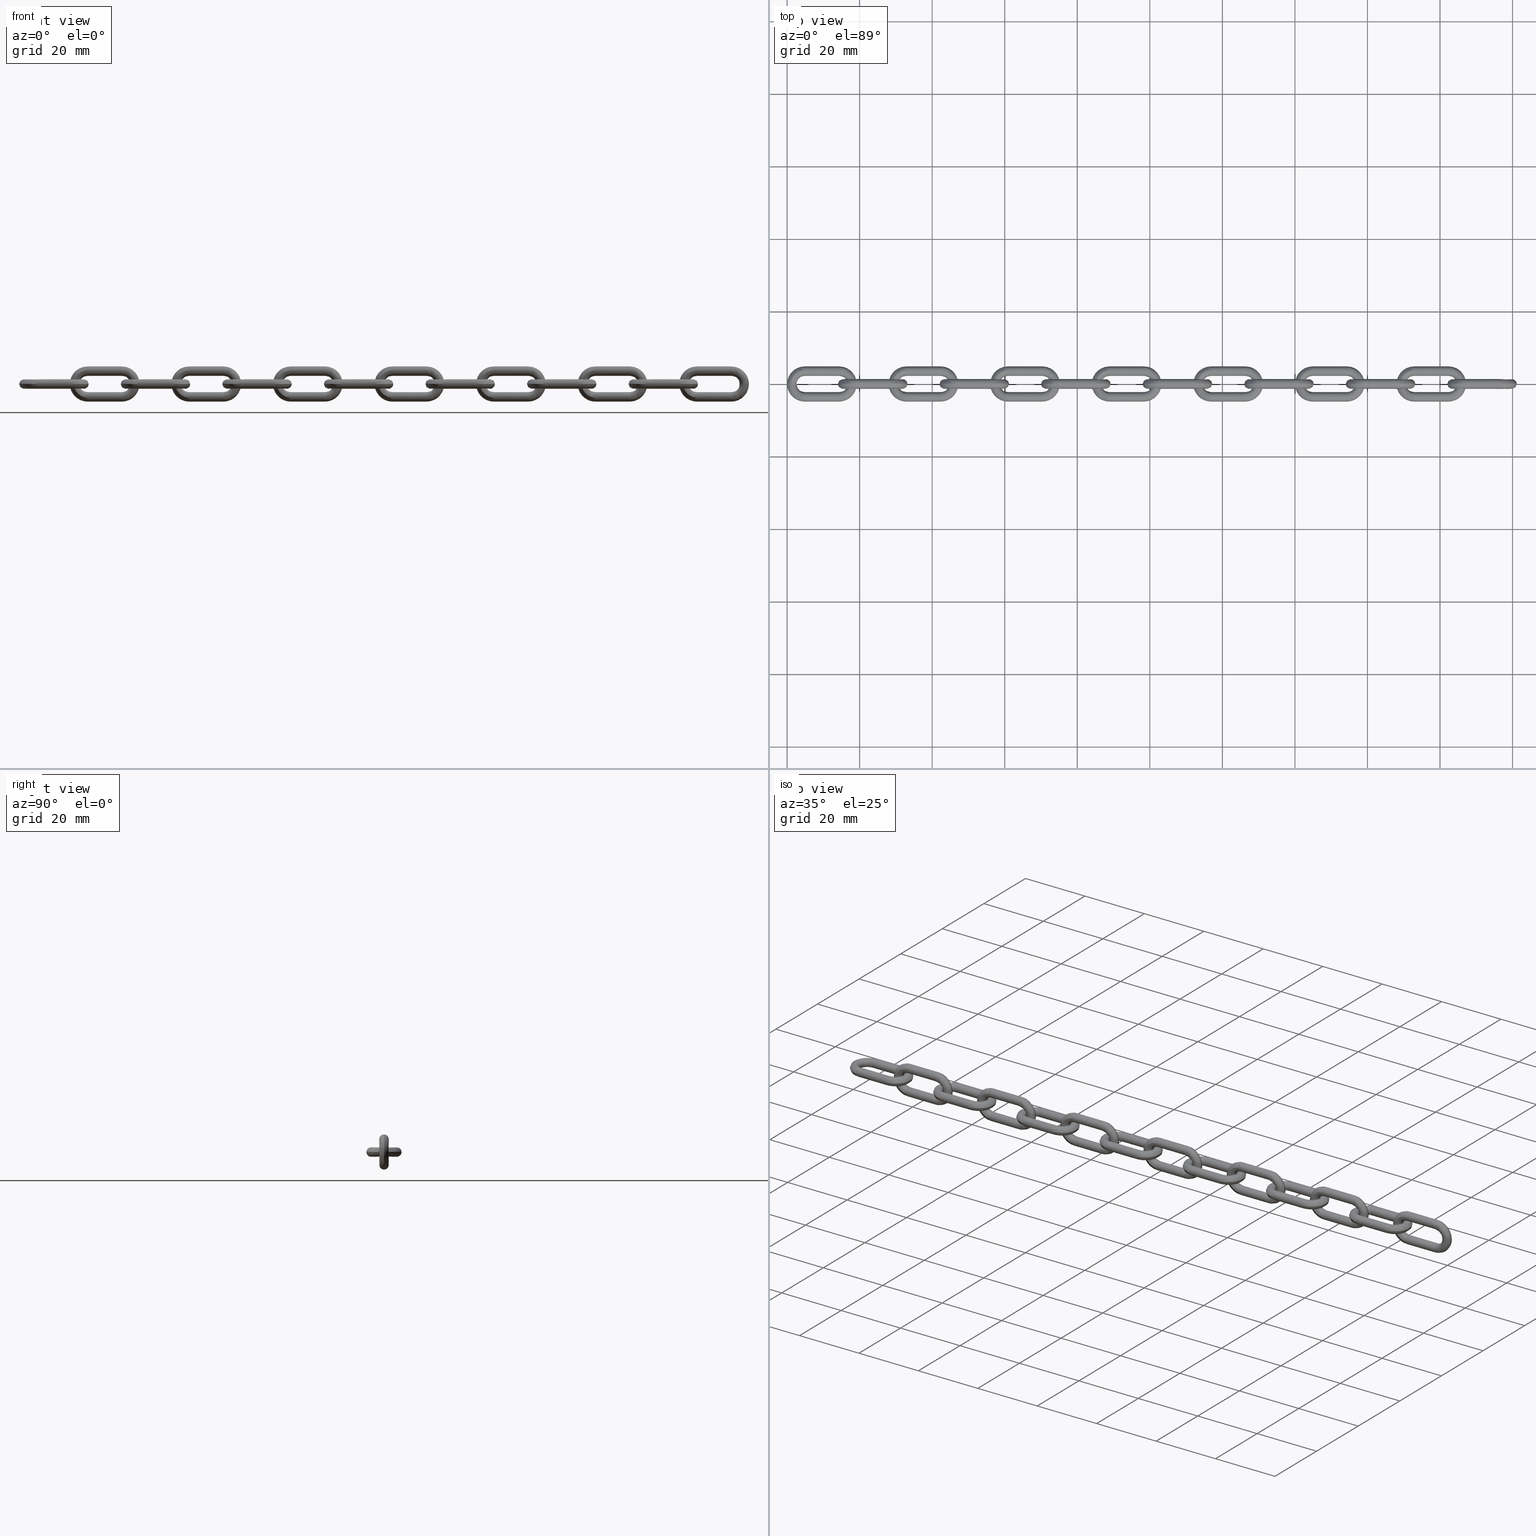
[diagram: canonical four-view strip — front | top / right | iso, engineering-drawing reading convention]
A machine part, canonical four-view strip (front | top / right | iso — engineering-drawing reading convention). The complete STEP part file that produces these views, byte-faithful:
ISO-10303-21;
HEADER;
/****************************************************************
 * Generated by software with PDE/Lib inside                    *
 * PDElib Version 4.4.1-0003, patched  Thursday August 19 11:58 *
 * International Technegroup Inc. (www.iti-oh.com)              *
 ****************************************************************/
FILE_DESCRIPTION((''),'2;1');
FILE_NAME('','2005-12-14T14:34:51',(''),(''),'','CADfix','');
FILE_SCHEMA(('AUTOMOTIVE_DESIGN'));
ENDSEC;
DATA;
#5=APPLICATION_CONTEXT('automotive design');
#6=APPLICATION_PROTOCOL_DEFINITION('Draft International Standard','automotive_design',1998,#5);
#7=PRODUCT_CONTEXT('None',#5,'mechanical');
#8=PRODUCT('chain','','None',(#7));
#9=PRODUCT_RELATED_PRODUCT_CATEGORY('part','description',(#8));
#10=PRODUCT_DEFINITION_FORMATION('None','None',#8);
#11=PRODUCT_DEFINITION_CONTEXT('part definition',#5,'design');
#12=PRODUCT_DEFINITION('None','None',#10,#11);
#18=(NAMED_UNIT(*)PLANE_ANGLE_UNIT()SI_UNIT($,.RADIAN.));
#19=DIMENSIONAL_EXPONENTS(0.0,0.0,0.0,0.0,0.0,0.0,0.0);
#20=PLANE_ANGLE_MEASURE_WITH_UNIT(PLANE_ANGLE_MEASURE(0.017453292500000),#18);
#24=(CONVERSION_BASED_UNIT('DEGREE',#20)NAMED_UNIT(#19)PLANE_ANGLE_UNIT());
#28=(NAMED_UNIT(*)SI_UNIT($,.STERADIAN.)SOLID_ANGLE_UNIT());
#32=(LENGTH_UNIT()NAMED_UNIT(*)SI_UNIT(.MILLI.,.METRE.));
#34=UNCERTAINTY_MEASURE_WITH_UNIT(LENGTH_MEASURE(0.001000000000000),#32,'DISTANCE_ACCURACY_VALUE','');
#36=(GEOMETRIC_REPRESENTATION_CONTEXT(3)GLOBAL_UNCERTAINTY_ASSIGNED_CONTEXT((#34))GLOBAL_UNIT_ASSIGNED_CONTEXT((#24,#28,#32))REPRESENTATION_CONTEXT('None','None'));
#37=AXIS2_PLACEMENT_3D('',#38,#39,#40);
#38=CARTESIAN_POINT('',(0.0,0.0,0.0));
#39=DIRECTION('',(0.0,0.0,1.0));
#40=DIRECTION('',(1.0,0.0,0.0));
#41=ADVANCED_BREP_SHAPE_REPRESENTATION('',(#37,#769,#809,#825,#841,#857,#873,#889,#905,#921,#937,#953,#969,#985,#1001,#1017),#36);
#42=PRODUCT_DEFINITION_SHAPE('','',#12);
#43=SHAPE_DEFINITION_REPRESENTATION(#42,#41);
#44=CARTESIAN_POINT('',(14.587500000033840,-2.607013317684027,-0.894860948401879));
#45=CARTESIAN_POINT('',(14.587500000033838,-3.501874266085907,-1.837847630717853));
#46=CARTESIAN_POINT('',(14.587500000033840,-4.444860948401880,-0.942986682315973));
#47=CARTESIAN_POINT('',(14.587500000033838,-5.387847630717854,-0.048125733914093));
#48=CARTESIAN_POINT('',(14.587500000033840,-4.492986682315974,0.894860948401881));
#49=CARTESIAN_POINT('',(14.587500000033838,-3.598125733914095,1.837847630717855));
#50=CARTESIAN_POINT('',(14.587500000033840,-2.655139051598121,0.942986682315974));
#51=CARTESIAN_POINT('',(4.606562499977150,-2.607013317684027,-0.894860948401879));
#52=CARTESIAN_POINT('',(4.606562499977151,-3.501874266085907,-1.837847630717853));
#53=CARTESIAN_POINT('',(4.606562499977151,-4.444860948401880,-0.942986682315973));
#54=CARTESIAN_POINT('',(4.606562499977151,-5.387847630717854,-0.048125733914093));
#55=CARTESIAN_POINT('',(4.606562499977150,-4.492986682315974,0.894860948401881));
#56=CARTESIAN_POINT('',(4.606562499977149,-3.598125733914095,1.837847630717855));
#57=CARTESIAN_POINT('',(4.606562499977149,-2.655139051598121,0.942986682315974));
#65=(BOUNDED_SURFACE()B_SPLINE_SURFACE(2,1,((#44,#51),(#45,#52),(#46,#53),(#47,#54),(#48,#55),(#49,#56),(#50,#57)),.UNSPECIFIED.,.F.,.F.,.U.)B_SPLINE_SURFACE_WITH_KNOTS((3,2,2,3),(2,2),(1.570796326794897,3.141592653589793,4.712388980384690,6.283185307179586),(0.0,9.980937500056690),.UNSPECIFIED.)GEOMETRIC_REPRESENTATION_ITEM()RATIONAL_B_SPLINE_SURFACE(((1.0,1.0),(0.707106781186548,0.707106781186548),(1.0,1.0),(0.707106781186548,0.707106781186548),(1.0,1.0),(0.707106781186548,0.707106781186548),(1.0,1.0)))REPRESENTATION_ITEM('')SURFACE());
#66=CARTESIAN_POINT('',(14.350000000000000,-2.607013300782122,-0.894860930590987));
#67=VERTEX_POINT('',#66);
#68=CARTESIAN_POINT('',(14.350000000000000,-3.550000000000000,-1.299999999999999));
#69=VERTEX_POINT('',#68);
#70=CARTESIAN_POINT('',(14.350000000000007,-2.607013300782121,-0.894860930590987));
#71=CARTESIAN_POINT('',(14.350000000000005,-2.991475893156725,-1.300000000000000));
#72=CARTESIAN_POINT('',(14.350000000000000,-3.550000000000000,-1.299999999999999));
#80=(BOUNDED_CURVE()B_SPLINE_CURVE(2,(#70,#71,#72),.UNSPECIFIED.,.F.,.U.)B_SPLINE_CURVE_WITH_KNOTS((3,3),(0.371049520958217,0.500000000000000),.UNSPECIFIED.)CURVE()GEOMETRIC_REPRESENTATION_ITEM()RATIONAL_B_SPLINE_CURVE((0.853699661791599,0.848925116503662,1.0))REPRESENTATION_ITEM(''));
#81=EDGE_CURVE('',#67,#69,#80,.T.);
#82=ORIENTED_EDGE('',*,*,#81,.T.);
#83=CARTESIAN_POINT('',(14.350000000032489,-4.009292556761671,-1.216162138575002));
#84=VERTEX_POINT('',#83);
#85=CARTESIAN_POINT('',(14.350000000000000,-3.550000000000000,-1.299999999999999));
#86=CARTESIAN_POINT('',(14.349999999999996,-3.787298032102261,-1.299999999999999));
#87=CARTESIAN_POINT('',(14.350000000032491,-4.009292556761671,-1.216162138575002));
#95=(BOUNDED_CURVE()B_SPLINE_CURVE(2,(#85,#86,#87),.UNSPECIFIED.,.F.,.U.)B_SPLINE_CURVE_WITH_KNOTS((3,3),(0.500000000000000,0.560000000026885),.UNSPECIFIED.)CURVE()GEOMETRIC_REPRESENTATION_ITEM()RATIONAL_B_SPLINE_CURVE((1.0,0.929705627453273,0.893152553744095))REPRESENTATION_ITEM(''));
#96=EDGE_CURVE('',#69,#84,#95,.T.);
#97=ORIENTED_EDGE('',*,*,#96,.T.);
#98=CARTESIAN_POINT('',(14.349999747431671,-4.849999999999985,-4.628621E-009));
#99=VERTEX_POINT('',#98);
#100=CARTESIAN_POINT('',(14.350000000032489,-4.009292556761671,-1.216162138575002));
#101=CARTESIAN_POINT('',(14.350000000000000,-4.849999993600664,-0.898662805216185));
#102=CARTESIAN_POINT('',(14.349999747431673,-4.849999999999985,-4.628621E-009));
#110=(BOUNDED_CURVE()B_SPLINE_CURVE(2,(#100,#101,#102),.UNSPECIFIED.,.F.,.U.)B_SPLINE_CURVE_WITH_KNOTS((3,3),(0.560000000026885,0.749999998741181),.UNSPECIFIED.)CURVE()GEOMETRIC_REPRESENTATION_ITEM()RATIONAL_B_SPLINE_CURVE((0.893152553744095,0.777401154500169,0.999999997050405))REPRESENTATION_ITEM(''));
#111=EDGE_CURVE('',#84,#99,#110,.T.);
#112=ORIENTED_EDGE('',*,*,#111,.T.);
#113=CARTESIAN_POINT('',(14.350000000000000,-3.550000000000000,1.300000000000001));
#114=VERTEX_POINT('',#113);
#115=CARTESIAN_POINT('',(14.349999747431674,-4.849999999999985,-4.628621E-009));
#116=CARTESIAN_POINT('',(14.350000000000000,-4.850000009257244,1.300000000000001));
#117=CARTESIAN_POINT('',(14.350000000000000,-3.550000000000000,1.300000000000001));
#125=(BOUNDED_CURVE()B_SPLINE_CURVE(2,(#115,#116,#117),.UNSPECIFIED.,.F.,.U.)B_SPLINE_CURVE_WITH_KNOTS((3,3),(0.749999998741181,1.0),.UNSPECIFIED.)CURVE()GEOMETRIC_REPRESENTATION_ITEM()RATIONAL_B_SPLINE_CURVE((1.000000002949597,0.707106779711749,1.0))REPRESENTATION_ITEM(''));
#126=EDGE_CURVE('',#99,#114,#125,.T.);
#127=ORIENTED_EDGE('',*,*,#126,.T.);
#128=CARTESIAN_POINT('',(14.350000000000000,-2.655139069194403,0.942986699014222));
#129=VERTEX_POINT('',#128);
#130=CARTESIAN_POINT('',(14.350000000000000,-3.550000000000000,1.300000000000001));
#131=CARTESIAN_POINT('',(14.349999999999998,-3.031352618353521,1.300000000000001));
#132=CARTESIAN_POINT('',(14.350000000000000,-2.655139069194402,0.942986699014222));
#140=(BOUNDED_CURVE()B_SPLINE_CURVE(2,(#130,#131,#132),.UNSPECIFIED.,.F.,.U.)B_SPLINE_CURVE_WITH_KNOTS((3,3),(0.0,0.121049521026909),.UNSPECIFIED.)CURVE()GEOMETRIC_REPRESENTATION_ITEM()RATIONAL_B_SPLINE_CURVE((1.0,0.858181664602408,0.853699661786512))REPRESENTATION_ITEM(''));
#141=EDGE_CURVE('',#114,#129,#140,.T.);
#142=ORIENTED_EDGE('',*,*,#141,.T.);
#143=CARTESIAN_POINT('',(4.850000000000001,-2.655139069414244,0.942986699222844));
#144=VERTEX_POINT('',#143);
#145=CARTESIAN_POINT('',(14.350000000000000,-2.655139069194403,0.942986699014222));
#146=CARTESIAN_POINT('',(4.850000000000001,-2.655139069414244,0.942986699222844));
#147=QUASI_UNIFORM_CURVE('',1,(#145,#146),.UNSPECIFIED.,.F.,.U.);
#148=EDGE_CURVE('',#129,#144,#147,.T.);
#149=ORIENTED_EDGE('',*,*,#148,.T.);
#150=CARTESIAN_POINT('',(4.849999999978532,-3.700103498260328,1.291305130404899));
#151=VERTEX_POINT('',#150);
#152=CARTESIAN_POINT('',(4.849999999978532,-3.700103498260328,1.291305130404899));
#153=CARTESIAN_POINT('',(4.850000000000001,-3.625303577963741,1.300000000000001));
#154=CARTESIAN_POINT('',(4.850000000000001,-3.550000000000000,1.300000000000001));
#155=CARTESIAN_POINT('',(4.850000000000001,-3.031352618704835,1.300000000000001));
#156=CARTESIAN_POINT('',(4.850000000000001,-2.655139069414244,0.942986699222844));
#164=(BOUNDED_CURVE()B_SPLINE_CURVE(2,(#152,#153,#154,#155,#156),.UNSPECIFIED.,.F.,.U.)B_SPLINE_CURVE_WITH_KNOTS((3,2,3),(0.229999999964596,0.250000000000000,0.371049520956542),.UNSPECIFIED.)CURVE()GEOMETRIC_REPRESENTATION_ITEM()RATIONAL_B_SPLINE_CURVE((0.956886118120977,0.976568542453446,1.0,0.858181664684847,0.853699661791723))REPRESENTATION_ITEM(''));
#165=EDGE_CURVE('',#151,#144,#164,.T.);
#166=ORIENTED_EDGE('',*,*,#165,.F.);
#167=CARTESIAN_POINT('',(4.850000252568300,-4.849999999999985,6.606287E-016));
#168=VERTEX_POINT('',#167);
#169=CARTESIAN_POINT('',(4.850000252568300,-4.849999999999985,6.606287E-016));
#170=CARTESIAN_POINT('',(4.850000000000001,-4.850000000000001,1.157639210831105));
#171=CARTESIAN_POINT('',(4.849999999978532,-3.700103498260328,1.291305130404899));
#179=(BOUNDED_CURVE()B_SPLINE_CURVE(2,(#169,#170,#171),.UNSPECIFIED.,.F.,.U.)B_SPLINE_CURVE_WITH_KNOTS((3,3),(0.0,0.229999999964596),.UNSPECIFIED.)CURVE()GEOMETRIC_REPRESENTATION_ITEM()RATIONAL_B_SPLINE_CURVE((1.0,0.730538238733102,0.956886118120977))REPRESENTATION_ITEM(''));
#180=EDGE_CURVE('',#168,#151,#179,.T.);
#181=ORIENTED_EDGE('',*,*,#180,.F.);
#182=CARTESIAN_POINT('',(4.850000000000000,-2.607013300985779,-0.894860930805597));
#183=VERTEX_POINT('',#182);
#184=CARTESIAN_POINT('',(4.850000000000000,-2.607013300985779,-0.894860930805597));
#185=CARTESIAN_POINT('',(4.850000000000001,-2.991475893507197,-1.299999999999999));
#186=CARTESIAN_POINT('',(4.850000000000001,-3.550000000000000,-1.299999999999999));
#187=CARTESIAN_POINT('',(4.850000000000001,-4.850000000000001,-1.299999999999999));
#188=CARTESIAN_POINT('',(4.850000252568300,-4.849999999999985,6.606287E-016));
#196=(BOUNDED_CURVE()B_SPLINE_CURVE(2,(#184,#185,#186,#187,#188),.UNSPECIFIED.,.F.,.U.)B_SPLINE_CURVE_WITH_KNOTS((3,2,3),(0.621049521026909,0.750000000000000,1.0),.UNSPECIFIED.)CURVE()GEOMETRIC_REPRESENTATION_ITEM()RATIONAL_B_SPLINE_CURVE((0.853699661786512,0.848925116584140,1.0,0.707106781186548,1.0))REPRESENTATION_ITEM(''));
#197=EDGE_CURVE('',#183,#168,#196,.T.);
#198=ORIENTED_EDGE('',*,*,#197,.F.);
#199=CARTESIAN_POINT('',(14.350000000000000,-2.607013300782122,-0.894860930590987));
#200=CARTESIAN_POINT('',(4.850000000000000,-2.607013300985779,-0.894860930805597));
#201=QUASI_UNIFORM_CURVE('',1,(#199,#200),.UNSPECIFIED.,.F.,.U.);
#202=EDGE_CURVE('',#67,#183,#201,.T.);
#203=ORIENTED_EDGE('',*,*,#202,.F.);
#204=EDGE_LOOP('',(#82,#97,#112,#127,#142,#149,#166,#181,#198,#203));
#205=FACE_OUTER_BOUND('',#204,.T.);
#206=ADVANCED_FACE('',(#205),#65,.T.);
#207=CARTESIAN_POINT('',(14.587500000033840,-2.655139051598121,0.942986682315974));
#208=CARTESIAN_POINT('',(14.587500000033838,-1.712152369282147,0.048125733914094));
#209=CARTESIAN_POINT('',(14.587500000033840,-2.607013317684027,-0.894860948401879));
#210=CARTESIAN_POINT('',(4.606562499977149,-2.655139051598121,0.942986682315974));
#211=CARTESIAN_POINT('',(4.606562499977149,-1.712152369282147,0.048125733914094));
#212=CARTESIAN_POINT('',(4.606562499977150,-2.607013317684027,-0.894860948401879));
#220=(BOUNDED_SURFACE()B_SPLINE_SURFACE(2,1,((#207,#210),(#208,#211),(#209,#212)),.UNSPECIFIED.,.F.,.F.,.U.)B_SPLINE_SURFACE_WITH_KNOTS((3,3),(2,2),(0.0,1.570796326794897),(0.0,9.980937500056690),.UNSPECIFIED.)GEOMETRIC_REPRESENTATION_ITEM()RATIONAL_B_SPLINE_SURFACE(((1.0,1.0),(0.707106781186548,0.707106781186548),(1.0,1.0)))REPRESENTATION_ITEM('')SURFACE());
#221=CARTESIAN_POINT('',(14.349999999999998,-2.655139069194403,0.942986699014222));
#222=CARTESIAN_POINT('',(14.350000000000003,-2.250000000000000,0.558524106492804));
#223=CARTESIAN_POINT('',(14.350000000000000,-2.250000000000000,6.521029E-016));
#224=CARTESIAN_POINT('',(14.350000000000003,-2.250000000000001,-0.518647381303528));
#225=CARTESIAN_POINT('',(14.350000000000009,-2.607013300782122,-0.894860930590987));
#233=(BOUNDED_CURVE()B_SPLINE_CURVE(2,(#221,#222,#223,#224,#225),.UNSPECIFIED.,.F.,.U.)B_SPLINE_CURVE_WITH_KNOTS((3,2,3),(0.121049521026909,0.250000000000000,0.371049520958217),.UNSPECIFIED.)CURVE()GEOMETRIC_REPRESENTATION_ITEM()RATIONAL_B_SPLINE_CURVE((0.853699661786512,0.848925116584140,1.0,0.858181664682885,0.853699661791599))REPRESENTATION_ITEM(''));
#234=EDGE_CURVE('',#129,#67,#233,.T.);
#235=ORIENTED_EDGE('',*,*,#234,.T.);
#236=ORIENTED_EDGE('',*,*,#202,.T.);
#237=CARTESIAN_POINT('',(4.850000000000001,-2.250000000000000,6.521029E-016));
#238=VERTEX_POINT('',#237);
#239=CARTESIAN_POINT('',(4.850000000000001,-2.250000000000000,6.521029E-016));
#240=CARTESIAN_POINT('',(4.850000000000001,-2.250000000000000,-0.518647381646475));
#241=CARTESIAN_POINT('',(4.850000000000000,-2.607013300985779,-0.894860930805597));
#249=(BOUNDED_CURVE()B_SPLINE_CURVE(2,(#239,#240,#241),.UNSPECIFIED.,.F.,.U.)B_SPLINE_CURVE_WITH_KNOTS((3,3),(0.500000000000000,0.621049521026908),.UNSPECIFIED.)CURVE()GEOMETRIC_REPRESENTATION_ITEM()RATIONAL_B_SPLINE_CURVE((1.0,0.858181664602409,0.853699661786512))REPRESENTATION_ITEM(''));
#250=EDGE_CURVE('',#238,#183,#249,.T.);
#251=ORIENTED_EDGE('',*,*,#250,.F.);
#252=CARTESIAN_POINT('',(4.850000000000001,-2.655139069414244,0.942986699222844));
#253=CARTESIAN_POINT('',(4.850000000000001,-2.250000000000000,0.558524106851819));
#254=CARTESIAN_POINT('',(4.850000000000001,-2.250000000000000,6.521029E-016));
#262=(BOUNDED_CURVE()B_SPLINE_CURVE(2,(#252,#253,#254),.UNSPECIFIED.,.F.,.U.)B_SPLINE_CURVE_WITH_KNOTS((3,3),(0.371049520956543,0.500000000000000),.UNSPECIFIED.)CURVE()GEOMETRIC_REPRESENTATION_ITEM()RATIONAL_B_SPLINE_CURVE((0.853699661791723,0.848925116501701,1.0))REPRESENTATION_ITEM(''));
#263=EDGE_CURVE('',#144,#238,#262,.T.);
#264=ORIENTED_EDGE('',*,*,#263,.F.);
#265=ORIENTED_EDGE('',*,*,#148,.F.);
#266=EDGE_LOOP('',(#235,#236,#251,#264,#265));
#267=FACE_OUTER_BOUND('',#266,.T.);
#268=ADVANCED_FACE('',(#267),#220,.T.);
#269=CARTESIAN_POINT('',(14.587500000037730,2.269637585910557,-0.225104616982970));
#270=CARTESIAN_POINT('',(14.587500000037736,2.153772046804529,0.433921765273735));
#271=CARTESIAN_POINT('',(14.587500000037730,2.622774416099565,0.911182043589806));
#272=CARTESIAN_POINT('',(14.587500000037727,3.533956459689374,1.838407627490241));
#273=CARTESIAN_POINT('',(14.587500000037730,4.461182043589807,0.927225583900434));
#274=CARTESIAN_POINT('',(14.587500000037727,5.388407627490241,0.016043540310627));
#275=CARTESIAN_POINT('',(14.587500000037730,4.477225583900435,-0.911182043589807));
#276=CARTESIAN_POINT('',(14.587500000037727,3.566043540310628,-1.838407627490243));
#277=CARTESIAN_POINT('',(14.587500000037730,2.638817956410194,-0.927225583900436));
#278=CARTESIAN_POINT('',(4.606562499988530,2.269637585910557,-0.225104616982970));
#279=CARTESIAN_POINT('',(4.606562499988532,2.153772046804529,0.433921765273735));
#280=CARTESIAN_POINT('',(4.606562499988531,2.622774416099565,0.911182043589806));
#281=CARTESIAN_POINT('',(4.606562499988531,3.533956459689374,1.838407627490241));
#282=CARTESIAN_POINT('',(4.606562499988532,4.461182043589807,0.927225583900434));
#283=CARTESIAN_POINT('',(4.606562499988531,5.388407627490241,0.016043540310627));
#284=CARTESIAN_POINT('',(4.606562499988531,4.477225583900435,-0.911182043589807));
#285=CARTESIAN_POINT('',(4.606562499988530,3.566043540310628,-1.838407627490243));
#286=CARTESIAN_POINT('',(4.606562499988530,2.638817956410194,-0.927225583900436));
#294=(BOUNDED_SURFACE()B_SPLINE_SURFACE(2,1,((#269,#278),(#270,#279),(#271,#280),(#272,#281),(#273,#282),(#274,#283),(#275,#284),(#276,#285),(#277,#286)),.UNSPECIFIED.,.F.,.F.,.U.)B_SPLINE_SURFACE_WITH_KNOTS((3,2,2,2,3),(2,2),(0.628318530717959,1.570796326794897,3.141592653589793,4.712388980384690,6.283185307179586),(0.0,9.980937500049203),.UNSPECIFIED.)GEOMETRIC_REPRESENTATION_ITEM()RATIONAL_B_SPLINE_SURFACE(((0.859411254969543,0.859411254969543),(0.824264068711928,0.824264068711928),(1.0,1.0),(0.707106781186548,0.707106781186548),(1.0,1.0),(0.707106781186548,0.707106781186548),(1.0,1.0),(0.707106781186548,0.707106781186548),(1.0,1.0)))REPRESENTATION_ITEM('')SURFACE());
#295=CARTESIAN_POINT('',(14.350000000000000,2.269637585914083,-0.225104617003032));
#296=VERTEX_POINT('',#295);
#297=CARTESIAN_POINT('',(14.350000000000000,3.550000000000000,1.299999999999999));
#298=VERTEX_POINT('',#297);
#299=CARTESIAN_POINT('',(14.350000000000003,2.269637585914083,-0.225104617003032));
#300=CARTESIAN_POINT('',(14.349999999999998,2.250000000000000,-0.113408876417108));
#301=CARTESIAN_POINT('',(14.350000000000000,2.250000000000000,-6.521029E-016));
#302=CARTESIAN_POINT('',(14.350000000000003,2.250000000000000,1.299999999999999));
#303=CARTESIAN_POINT('',(14.350000000000000,3.550000000000000,1.299999999999999));
#311=(BOUNDED_CURVE()B_SPLINE_CURVE(2,(#299,#300,#301,#302,#303),.UNSPECIFIED.,.F.,.U.)B_SPLINE_CURVE_WITH_KNOTS((3,2,3),(0.720232500191542,0.750000000000000,1.0),.UNSPECIFIED.)CURVE()GEOMETRIC_REPRESENTATION_ITEM()RATIONAL_B_SPLINE_CURVE((0.938555493029335,0.965125204660288,1.0,0.707106781186548,1.0))REPRESENTATION_ITEM(''));
#312=EDGE_CURVE('',#296,#298,#311,.T.);
#313=ORIENTED_EDGE('',*,*,#312,.T.);
#314=CARTESIAN_POINT('',(14.349993768262451,4.849999999991984,0.000000111803993));
#315=VERTEX_POINT('',#314);
#316=CARTESIAN_POINT('',(14.350000000000000,3.550000000000000,1.299999999999999));
#317=CARTESIAN_POINT('',(14.349996884131226,4.849999888192003,1.299999999999999));
#318=CARTESIAN_POINT('',(14.349993768262452,4.849999999991984,0.000000111803993));
#326=(BOUNDED_CURVE()B_SPLINE_CURVE(2,(#316,#317,#318),.UNSPECIFIED.,.F.,.U.)B_SPLINE_CURVE_WITH_KNOTS((3,3),(0.0,0.249999984796661),.UNSPECIFIED.)CURVE()GEOMETRIC_REPRESENTATION_ITEM()RATIONAL_B_SPLINE_CURVE((1.0,0.707106798998367,0.999999964376364))REPRESENTATION_ITEM(''));
#327=EDGE_CURVE('',#298,#315,#326,.T.);
#328=ORIENTED_EDGE('',*,*,#327,.T.);
#329=CARTESIAN_POINT('',(14.350000000036561,4.009292556765669,-1.216162138573494));
#330=VERTEX_POINT('',#329);
#331=CARTESIAN_POINT('',(14.349993768262445,4.849999999991984,0.000000111803993));
#332=CARTESIAN_POINT('',(14.349996884149501,4.850000077229987,-0.898662773625133));
#333=CARTESIAN_POINT('',(14.350000000036561,4.009292556765668,-1.216162138573494));
#341=(BOUNDED_CURVE()B_SPLINE_CURVE(2,(#331,#332,#333),.UNSPECIFIED.,.F.,.U.)B_SPLINE_CURVE_WITH_KNOTS((3,3),(0.249999984796661,0.439999999972078),.UNSPECIFIED.)CURVE()GEOMETRIC_REPRESENTATION_ITEM()RATIONAL_B_SPLINE_CURVE((1.000000035623641,0.777401144472343,0.893152553742831))REPRESENTATION_ITEM(''));
#342=EDGE_CURVE('',#315,#330,#341,.T.);
#343=ORIENTED_EDGE('',*,*,#342,.T.);
#344=CARTESIAN_POINT('',(14.350000000000000,3.550000000000000,-1.300000000000001));
#345=VERTEX_POINT('',#344);
#346=CARTESIAN_POINT('',(14.350000000036564,4.009292556765669,-1.216162138573494));
#347=CARTESIAN_POINT('',(14.350000000000005,3.787298032106674,-1.300000000000001));
#348=CARTESIAN_POINT('',(14.350000000000000,3.550000000000000,-1.300000000000001));
#356=(BOUNDED_CURVE()B_SPLINE_CURVE(2,(#346,#347,#348),.UNSPECIFIED.,.F.,.U.)B_SPLINE_CURVE_WITH_KNOTS((3,3),(0.439999999972078,0.500000000000000),.UNSPECIFIED.)CURVE()GEOMETRIC_REPRESENTATION_ITEM()RATIONAL_B_SPLINE_CURVE((0.893152553742831,0.929705627452058,1.0))REPRESENTATION_ITEM(''));
#357=EDGE_CURVE('',#330,#345,#356,.T.);
#358=ORIENTED_EDGE('',*,*,#357,.T.);
#359=CARTESIAN_POINT('',(14.350000000000000,2.638817978805727,-0.927225605908464));
#360=VERTEX_POINT('',#359);
#361=CARTESIAN_POINT('',(14.350000000000000,3.550000000000000,-1.300000000000001));
#362=CARTESIAN_POINT('',(14.350000000000003,3.018155994798574,-1.300000000000001));
#363=CARTESIAN_POINT('',(14.350000000000001,2.638817978805727,-0.927225605908464));
#371=(BOUNDED_CURVE()B_SPLINE_CURVE(2,(#361,#362,#363),.UNSPECIFIED.,.F.,.U.)B_SPLINE_CURVE_WITH_KNOTS((3,3),(0.500000000000000,0.623683235119876),.UNSPECIFIED.)CURVE()GEOMETRIC_REPRESENTATION_ITEM()RATIONAL_B_SPLINE_CURVE((1.0,0.855096076609914,0.853569641431416))REPRESENTATION_ITEM(''));
#372=EDGE_CURVE('',#345,#360,#371,.T.);
#373=ORIENTED_EDGE('',*,*,#372,.T.);
#374=CARTESIAN_POINT('',(4.850000931950373,2.638817998730483,-0.927225625489052));
#375=VERTEX_POINT('',#374);
#376=CARTESIAN_POINT('',(14.350000000000000,2.638817978805727,-0.927225605908464));
#377=CARTESIAN_POINT('',(4.850000931950373,2.638817998730483,-0.927225625489052));
#378=QUASI_UNIFORM_CURVE('',1,(#376,#377),.UNSPECIFIED.,.F.,.U.);
#379=EDGE_CURVE('',#360,#375,#378,.T.);
#380=ORIENTED_EDGE('',*,*,#379,.T.);
#381=CARTESIAN_POINT('',(4.850006231737840,4.849999999991994,6.605291E-016));
#382=VERTEX_POINT('',#381);
#383=CARTESIAN_POINT('',(4.850000931950373,2.638817998730484,-0.927225625489052));
#384=CARTESIAN_POINT('',(4.850001841133456,3.018156027407887,-1.300000000000000));
#385=CARTESIAN_POINT('',(4.850003115868920,3.549999999995997,-1.299999999999999));
#386=CARTESIAN_POINT('',(4.850006231737840,4.849999999991994,-1.299999999999999));
#387=CARTESIAN_POINT('',(4.850006231737840,4.849999999991994,6.605291E-016));
#395=(BOUNDED_CURVE()B_SPLINE_CURVE(2,(#383,#384,#385,#386,#387),.UNSPECIFIED.,.F.,.U.)B_SPLINE_CURVE_WITH_KNOTS((3,2,3),(0.626316771365194,0.750000000000000,1.0),.UNSPECIFIED.)CURVE()GEOMETRIC_REPRESENTATION_ITEM()RATIONAL_B_SPLINE_CURVE((0.853569641591487,0.855096084207646,1.0,0.707106781186548,1.0))REPRESENTATION_ITEM(''));
#396=EDGE_CURVE('',#375,#382,#395,.T.);
#397=ORIENTED_EDGE('',*,*,#396,.T.);
#398=CARTESIAN_POINT('',(4.849999999989732,3.700103498207667,1.291305130411020));
#399=VERTEX_POINT('',#398);
#400=CARTESIAN_POINT('',(4.850006231737840,4.849999999991994,6.605291E-016));
#401=CARTESIAN_POINT('',(4.850003115863786,4.849999999954763,1.157639210930958));
#402=CARTESIAN_POINT('',(4.849999999989732,3.700103498207667,1.291305130411020));
#410=(BOUNDED_CURVE()B_SPLINE_CURVE(2,(#400,#401,#402),.UNSPECIFIED.,.F.,.U.)B_SPLINE_CURVE_WITH_KNOTS((3,3),(0.0,0.229999999978394),.UNSPECIFIED.)CURVE()GEOMETRIC_REPRESENTATION_ITEM()RATIONAL_B_SPLINE_CURVE((1.0,0.730538238716937,0.956886118148133))REPRESENTATION_ITEM(''));
#411=EDGE_CURVE('',#382,#399,#410,.T.);
#412=ORIENTED_EDGE('',*,*,#411,.T.);
#413=CARTESIAN_POINT('',(4.850000000000001,2.250000000000000,6.521029E-016));
#414=VERTEX_POINT('',#413);
#415=CARTESIAN_POINT('',(4.849999999989732,3.700103498207666,1.291305130411021));
#416=CARTESIAN_POINT('',(4.850000000000001,3.625303577910545,1.300000000000001));
#417=CARTESIAN_POINT('',(4.850000000000001,3.550000000000000,1.300000000000001));
#418=CARTESIAN_POINT('',(4.850000000000001,2.250000000000000,1.300000000000001));
#419=CARTESIAN_POINT('',(4.850000000000001,2.250000000000000,6.521029E-016));
#427=(BOUNDED_CURVE()B_SPLINE_CURVE(2,(#415,#416,#417,#418,#419),.UNSPECIFIED.,.F.,.U.)B_SPLINE_CURVE_WITH_KNOTS((3,2,3),(0.229999999978393,0.250000000000000,0.500000000000000),.UNSPECIFIED.)CURVE()GEOMETRIC_REPRESENTATION_ITEM()RATIONAL_B_SPLINE_CURVE((0.956886118148133,0.976568542469610,1.0,0.707106781186548,1.0))REPRESENTATION_ITEM(''));
#428=EDGE_CURVE('',#399,#414,#427,.T.);
#429=ORIENTED_EDGE('',*,*,#428,.T.);
#430=CARTESIAN_POINT('',(4.850000047067804,2.269637585914851,-0.225104617007572));
#431=VERTEX_POINT('',#430);
#432=CARTESIAN_POINT('',(4.850000000000001,2.250000000000000,6.521029E-016));
#433=CARTESIAN_POINT('',(4.850000000000001,2.250000000000000,-0.113408876421751));
#434=CARTESIAN_POINT('',(4.850000047067804,2.269637585914851,-0.225104617007572));
#442=(BOUNDED_CURVE()B_SPLINE_CURVE(2,(#432,#433,#434),.UNSPECIFIED.,.F.,.U.)B_SPLINE_CURVE_WITH_KNOTS((3,3),(0.500000000000000,0.529767499809634),.UNSPECIFIED.)CURVE()GEOMETRIC_REPRESENTATION_ITEM()RATIONAL_B_SPLINE_CURVE((1.0,0.965125204658910,0.938555493027235))REPRESENTATION_ITEM(''));
#443=EDGE_CURVE('',#414,#431,#442,.T.);
#444=ORIENTED_EDGE('',*,*,#443,.T.);
#445=CARTESIAN_POINT('',(14.350000000000000,2.269637585914083,-0.225104617003032));
#446=CARTESIAN_POINT('',(4.850000047067804,2.269637585914851,-0.225104617007572));
#447=QUASI_UNIFORM_CURVE('',1,(#445,#446),.UNSPECIFIED.,.F.,.U.);
#448=EDGE_CURVE('',#296,#431,#447,.T.);
#449=ORIENTED_EDGE('',*,*,#448,.F.);
#450=EDGE_LOOP('',(#313,#328,#343,#358,#373,#380,#397,#412,#429,#444,#449));
#451=FACE_OUTER_BOUND('',#450,.T.);
#452=ADVANCED_FACE('',(#451),#294,.T.);
#453=CARTESIAN_POINT('',(14.587500000037730,2.638817956410194,-0.927225583900436));
#454=CARTESIAN_POINT('',(14.587500000037737,2.341755982039758,-0.635303594710864));
#455=CARTESIAN_POINT('',(14.587500000037730,2.269637585910557,-0.225104616982970));
#456=CARTESIAN_POINT('',(4.606562499988530,2.638817956410194,-0.927225583900436));
#457=CARTESIAN_POINT('',(4.606562499988530,2.341755982039758,-0.635303594710864));
#458=CARTESIAN_POINT('',(4.606562499988530,2.269637585910557,-0.225104616982970));
#466=(BOUNDED_SURFACE()B_SPLINE_SURFACE(2,1,((#453,#456),(#454,#457),(#455,#458)),.UNSPECIFIED.,.F.,.F.,.U.)B_SPLINE_SURFACE_WITH_KNOTS((3,3),(2,2),(0.0,0.628318530717959),(0.0,9.980937500049203),.UNSPECIFIED.)GEOMETRIC_REPRESENTATION_ITEM()RATIONAL_B_SPLINE_SURFACE(((1.0,1.0),(0.882842712474619,0.882842712474619),(0.859411254969543,0.859411254969543)))REPRESENTATION_ITEM('')SURFACE());
#467=CARTESIAN_POINT('',(14.350000000000003,2.638817978805727,-0.927225605908464));
#468=CARTESIAN_POINT('',(14.350000000000000,2.341755988050857,-0.635303628825738));
#469=CARTESIAN_POINT('',(14.350000000000000,2.269637585914083,-0.225104617003032));
#477=(BOUNDED_CURVE()B_SPLINE_CURVE(2,(#467,#468,#469),.UNSPECIFIED.,.F.,.U.)B_SPLINE_CURVE_WITH_KNOTS((3,3),(0.623683235119875,0.720232500191541),.UNSPECIFIED.)CURVE()GEOMETRIC_REPRESENTATION_ITEM()RATIONAL_B_SPLINE_CURVE((0.853569641431416,0.852378079822272,0.938555493029333))REPRESENTATION_ITEM(''));
#478=EDGE_CURVE('',#360,#296,#477,.T.);
#479=ORIENTED_EDGE('',*,*,#478,.T.);
#480=ORIENTED_EDGE('',*,*,#448,.T.);
#481=CARTESIAN_POINT('',(4.850000047067804,2.269637585914851,-0.225104617007572));
#482=CARTESIAN_POINT('',(4.850000219922807,2.341755993388031,-0.635303659167367));
#483=CARTESIAN_POINT('',(4.850000931950373,2.638817998730483,-0.927225625489052));
#491=(BOUNDED_CURVE()B_SPLINE_CURVE(2,(#481,#482,#483),.UNSPECIFIED.,.F.,.U.)B_SPLINE_CURVE_WITH_KNOTS((3,3),(0.529767499809635,0.626316771365194),.UNSPECIFIED.)CURVE()GEOMETRIC_REPRESENTATION_ITEM()RATIONAL_B_SPLINE_CURVE((0.938555493027234,0.852378074033879,0.853569641591487))REPRESENTATION_ITEM(''));
#492=EDGE_CURVE('',#431,#375,#491,.T.);
#493=ORIENTED_EDGE('',*,*,#492,.T.);
#494=ORIENTED_EDGE('',*,*,#379,.F.);
#495=EDGE_LOOP('',(#479,#480,#493,#494));
#496=FACE_OUTER_BOUND('',#495,.T.);
#497=ADVANCED_FACE('',(#496),#466,.T.);
#498=CARTESIAN_POINT('',(13.783015798236740,3.968999334822969,-1.216162138614107));
#499=CARTESIAN_POINT('',(18.388443747074380,4.626899392008644,-1.216162138614106));
#500=CARTESIAN_POINT('',(18.359213416655560,-0.025190962333525,-1.216162138614106));
#501=CARTESIAN_POINT('',(18.330331238435107,-4.621871902530494,-1.216162138614106));
#502=CARTESIAN_POINT('',(13.780216554396326,-3.968598446553929,-1.216162138614106));
#503=CARTESIAN_POINT('',(13.814409712895552,3.749235845803614,-1.299999999999999));
#504=CARTESIAN_POINT('',(18.164835121021266,4.370707977510787,-1.299999999999999));
#505=CARTESIAN_POINT('',(18.137223273967184,-0.023796138775456,-1.299999999999999));
#506=CARTESIAN_POINT('',(18.109940301924581,-4.365958860119783,-1.299999999999999));
#507=CARTESIAN_POINT('',(13.811765463183661,-3.748857154717612,-1.299999999999999));
#508=CARTESIAN_POINT('',(13.847967811573890,3.514322649072522,-1.300000000000000));
#509=CARTESIAN_POINT('',(17.925811717283093,4.096855644608247,-1.299999999999999));
#510=CARTESIAN_POINT('',(17.899929926039292,-0.022305161077733,-1.299999999999999));
#511=CARTESIAN_POINT('',(17.874356403719901,-4.092404089278914,-1.299999999999999));
#512=CARTESIAN_POINT('',(13.845489240730524,-3.513967685363841,-1.299999999999999));
#513=CARTESIAN_POINT('',(14.031810584800352,2.227387594482583,-1.299999999999999));
#514=CARTESIAN_POINT('',(16.616359539123092,2.596598647991145,-1.299999999999999));
#515=CARTESIAN_POINT('',(16.599955586926310,-0.014137073922506,-1.299999999999999));
#516=CARTESIAN_POINT('',(16.583747016442192,-2.593777239683819,-1.299999999999999));
#517=CARTESIAN_POINT('',(14.030239659617937,-2.227162617484125,-1.299999999999999));
#518=CARTESIAN_POINT('',(14.031810584800350,2.227387594482583,4.929041E-016));
#519=CARTESIAN_POINT('',(16.616359539123092,2.596598647991142,4.929041E-016));
#520=CARTESIAN_POINT('',(16.599955586926310,-0.014137073922506,4.929041E-016));
#521=CARTESIAN_POINT('',(16.583747016442182,-2.593777239683818,4.929041E-016));
#522=CARTESIAN_POINT('',(14.030239659617939,-2.227162617484125,4.929041E-016));
#523=CARTESIAN_POINT('',(14.031810584800352,2.227387594482583,1.300000000000000));
#524=CARTESIAN_POINT('',(16.616359539123092,2.596598647991143,1.300000000000001));
#525=CARTESIAN_POINT('',(16.599955586926310,-0.014137073922506,1.300000000000000));
#526=CARTESIAN_POINT('',(16.583747016442189,-2.593777239683819,1.300000000000000));
#527=CARTESIAN_POINT('',(14.030239659617937,-2.227162617484125,1.300000000000000));
#528=CARTESIAN_POINT('',(13.847967811573890,3.514322649072521,1.300000000000001));
#529=CARTESIAN_POINT('',(17.925811717283093,4.096855644608247,1.300000000000000));
#530=CARTESIAN_POINT('',(17.899929926039292,-0.022305161077733,1.300000000000000));
#531=CARTESIAN_POINT('',(17.874356403719901,-4.092404089278914,1.300000000000000));
#532=CARTESIAN_POINT('',(13.845489240730524,-3.513967685363841,1.300000000000000));
#533=CARTESIAN_POINT('',(13.664125038347429,4.801257703662457,1.300000000000000));
#534=CARTESIAN_POINT('',(19.235263895443111,5.597112641225349,1.300000000000001));
#535=CARTESIAN_POINT('',(19.199904265152259,-0.030473248232959,1.300000000000001));
#536=CARTESIAN_POINT('',(19.164965790997602,-5.591030938874011,1.300000000000000));
#537=CARTESIAN_POINT('',(13.660738821843108,-4.800772753243559,1.300000000000001));
#538=CARTESIAN_POINT('',(13.664125038347429,4.801257703662459,9.705005E-016));
#539=CARTESIAN_POINT('',(19.235263895443111,5.597112641225349,9.705005E-016));
#540=CARTESIAN_POINT('',(19.199904265152259,-0.030473248232959,9.705005E-016));
#541=CARTESIAN_POINT('',(19.164965790997602,-5.591030938874011,9.705005E-016));
#542=CARTESIAN_POINT('',(13.660738821843111,-4.800772753243561,9.705005E-016));
#550=(BOUNDED_SURFACE()B_SPLINE_SURFACE(2,2,((#498,#503,#508,#513,#518,#523,#528,#533,#538),(#499,#504,#509,#514,#519,#524,#529,#534,#539),(#500,#505,#510,#515,#520,#525,#530,#535,#540),(#501,#506,#511,#516,#521,#526,#531,#536,#541),(#502,#507,#512,#517,#522,#527,#532,#537,#542)),.UNSPECIFIED.,.F.,.F.,.U.)B_SPLINE_SURFACE_WITH_KNOTS((3,2,3),(3,2,2,2,3),(0.0,8.891160425470210,17.713218100692639),(0.0,0.516938525841623,2.670849050181718,4.824759574521813,6.978670098861907),.UNSPECIFIED.)GEOMETRIC_REPRESENTATION_ITEM()RATIONAL_B_SPLINE_SURFACE(((0.884916665903933,0.921132678473532,0.990778856491993,0.700586448081741,0.990778856491993,0.700586448081741,0.990778856491993,0.700586448081741,0.990778856491993),(0.580379261752194,0.604131806425179,0.649809776950150,0.459484899762769,0.649809776950150,0.459484899762769,0.649809776950150,0.459484899762769,0.649809776950150),(0.893152553776853,0.929705627484771,1.0,0.707106781186548,1.0,0.707106781186548,1.0,0.707106781186548,1.0),(0.582810158693502,0.606662190015992,0.652531481020781,0.461409435167495,0.652531481020781,0.461409435167495,0.652531481020781,0.461409435167495,0.652531481020781),(0.880220180597678,0.916243985270831,0.985520532719201,0.696868251684326,0.985520532719201,0.696868251684326,0.985520532719201,0.696868251684326,0.985520532719201)))REPRESENTATION_ITEM('')SURFACE());
#551=ORIENTED_EDGE('',*,*,#96,.F.);
#552=ORIENTED_EDGE('',*,*,#81,.F.);
#553=ORIENTED_EDGE('',*,*,#234,.F.);
#554=ORIENTED_EDGE('',*,*,#141,.F.);
#555=ORIENTED_EDGE('',*,*,#126,.F.);
#556=CARTESIAN_POINT('',(14.349993768262445,4.849999999991984,0.000000111803993));
#557=CARTESIAN_POINT('',(19.230569625900660,4.850006271020294,6.850217E-016));
#558=CARTESIAN_POINT('',(19.199904265152259,-0.030473248232959,6.661338E-016));
#559=CARTESIAN_POINT('',(19.169621883822796,-4.850000501972743,6.847858E-016));
#560=CARTESIAN_POINT('',(14.349999747431667,-4.849999999999985,-4.628621E-009));
#568=(BOUNDED_CURVE()B_SPLINE_CURVE(2,(#556,#557,#558,#559,#560),.UNSPECIFIED.,.F.,.U.)B_SPLINE_CURVE_WITH_KNOTS((3,2,3),(-3.795103461357470,-2.0,-0.220235962962197),.UNSPECIFIED.)CURVE()GEOMETRIC_REPRESENTATION_ITEM()RATIONAL_B_SPLINE_CURVE((0.934738961241644,0.681492722177155,1.0,0.684214413928410,0.930452657361942))REPRESENTATION_ITEM(''));
#569=EDGE_CURVE('',#315,#99,#568,.T.);
#570=ORIENTED_EDGE('',*,*,#569,.F.);
#571=ORIENTED_EDGE('',*,*,#327,.F.);
#572=ORIENTED_EDGE('',*,*,#312,.F.);
#573=ORIENTED_EDGE('',*,*,#478,.F.);
#574=ORIENTED_EDGE('',*,*,#372,.F.);
#575=ORIENTED_EDGE('',*,*,#357,.F.);
#576=CARTESIAN_POINT('',(14.350000000036559,4.009292556765668,-1.216162138573494));
#577=CARTESIAN_POINT('',(18.384563157813798,4.009292556584549,-1.216162138614106));
#578=CARTESIAN_POINT('',(18.359213416655560,-0.025190962333525,-1.216162138614106));
#579=CARTESIAN_POINT('',(18.334180238631916,-4.009292556593554,-1.216162138614106));
#580=CARTESIAN_POINT('',(14.350000000032487,-4.009292556761671,-1.216162138575002));
#588=(BOUNDED_CURVE()B_SPLINE_CURVE(2,(#576,#577,#578,#579,#580),.UNSPECIFIED.,.F.,.U.)B_SPLINE_CURVE_WITH_KNOTS((3,2,3),(-3.795101889429071,-2.0,-0.220236089814376),.UNSPECIFIED.)CURVE()GEOMETRIC_REPRESENTATION_ITEM()RATIONAL_B_SPLINE_CURVE((0.834864094214270,0.608677214301212,0.893152553776853,0.611107871233749,0.831036135740622))REPRESENTATION_ITEM(''));
#589=EDGE_CURVE('',#330,#84,#588,.T.);
#590=ORIENTED_EDGE('',*,*,#589,.T.);
#591=EDGE_LOOP('',(#551,#552,#553,#554,#555,#570,#571,#572,#573,#574,#575,#590));
#592=FACE_OUTER_BOUND('',#591,.T.);
#593=ADVANCED_FACE('',(#592),#550,.T.);
#594=CARTESIAN_POINT('',(13.664125038347427,4.801257703662459,0.006972754457383));
#595=CARTESIAN_POINT('',(19.235263895443108,5.597112641225348,0.006972754457383));
#596=CARTESIAN_POINT('',(19.199904265152263,-0.030473248232959,0.006972754457383));
#597=CARTESIAN_POINT('',(19.164965790997599,-5.591030938874011,0.006972754457383));
#598=CARTESIAN_POINT('',(13.660738821843111,-4.800772753243560,0.006972754457383));
#599=CARTESIAN_POINT('',(13.664125038347427,4.801257703662459,0.003490254377046));
#600=CARTESIAN_POINT('',(19.235263895443111,5.597112641225349,0.003490254377046));
#601=CARTESIAN_POINT('',(19.199904265152266,-0.030473248232959,0.003490254377046));
#602=CARTESIAN_POINT('',(19.164965790997599,-5.591030938874011,0.003490254377046));
#603=CARTESIAN_POINT('',(13.660738821843104,-4.800772753243559,0.003490254377046));
#604=CARTESIAN_POINT('',(13.664125038347423,4.801257703662459,-0.898662788457321));
#605=CARTESIAN_POINT('',(19.235263895443111,5.597112641225351,-0.898662788457321));
#606=CARTESIAN_POINT('',(19.199904265152274,-0.030473248232959,-0.898662788457321));
#607=CARTESIAN_POINT('',(19.164965790997602,-5.591030938874013,-0.898662788457321));
#608=CARTESIAN_POINT('',(13.660738821843113,-4.800772753243559,-0.898662788457321));
#609=CARTESIAN_POINT('',(13.783561911511306,3.965176436024770,-1.217620541352473));
#610=CARTESIAN_POINT('',(18.384553960141996,4.622442810731370,-1.217620541352472));
#611=CARTESIAN_POINT('',(18.355351784072816,-0.025166698661122,-1.217620541352472));
#612=CARTESIAN_POINT('',(18.326497424865437,-4.617420163678689,-1.217620541352472));
#613=CARTESIAN_POINT('',(13.780765363873392,-3.964775933887132,-1.217620541352472));
#614=CARTESIAN_POINT('',(13.784107280872977,3.961358744761152,-1.219076957461556));
#615=CARTESIAN_POINT('',(18.380669471858884,4.617992300187933,-1.219076957461557));
#616=CARTESIAN_POINT('',(18.351495411787628,-0.025142468040577,-1.219076957461556));
#617=CARTESIAN_POINT('',(18.322668833698401,-4.612974488964399,-1.219076957461557));
#618=CARTESIAN_POINT('',(13.781313425764800,-3.960958628228931,-1.219076957461557));
#626=(BOUNDED_SURFACE()B_SPLINE_SURFACE(2,2,((#594,#599,#604,#609,#614),(#595,#600,#605,#610,#615),(#596,#601,#606,#611,#616),(#597,#602,#607,#612,#617),(#598,#603,#608,#613,#618)),.UNSPECIFIED.,.F.,.F.,.U.)B_SPLINE_SURFACE_WITH_KNOTS((3,2,3),(3,1,1,3),(0.0,8.891160425470208,17.713218100692639),(0.0,0.008107159858873,1.629059912733986,1.637620127383529),.UNSPECIFIED.)GEOMETRIC_REPRESENTATION_ITEM()RATIONAL_B_SPLINE_SURFACE(((0.992984970791685,0.991881913641839,0.770232628867692,0.885522306803778,0.886127950581814),(0.651256673633115,0.650533225291633,0.505162872102820,0.580776475898884,0.581173691933257),(1.002226646526858,1.001113323263429,0.777401156495024,0.893763831354969,0.894375111838063),(0.653984437976661,0.653257959498721,0.507278727994965,0.583209036556865,0.583607916315817),(0.987714938590527,0.986617735654864,0.766144801885498,0.880822607202103,0.881425036669443)))REPRESENTATION_ITEM('')SURFACE());
#627=ORIENTED_EDGE('',*,*,#111,.F.);
#628=ORIENTED_EDGE('',*,*,#589,.F.);
#629=ORIENTED_EDGE('',*,*,#342,.F.);
#630=ORIENTED_EDGE('',*,*,#569,.T.);
#631=EDGE_LOOP('',(#627,#628,#629,#630));
#632=FACE_OUTER_BOUND('',#631,.T.);
#633=ADVANCED_FACE('',(#632),#626,.T.);
#634=CARTESIAN_POINT('',(5.373258718540313,3.662917571118575,1.291305147345869));
#635=CARTESIAN_POINT('',(1.122993548100127,4.270080649009485,1.291305147345869));
#636=CARTESIAN_POINT('',(1.149969684351316,-0.023248282051335,1.291305147345869));
#637=CARTESIAN_POINT('',(1.176624521340704,-4.265441520314078,1.291305147345869));
#638=CARTESIAN_POINT('',(5.375842636217327,-3.662547520684701,1.291305147345870));
#639=CARTESIAN_POINT('',(5.362680724088826,3.588869456160004,1.300000000000000));
#640=CARTESIAN_POINT('',(1.198337258910781,4.183758361750462,1.300000000000001));
#641=CARTESIAN_POINT('',(1.224768056098372,-0.022778303836292,1.300000000000000));
#642=CARTESIAN_POINT('',(1.250884049284898,-4.179213015873878,1.300000000000001));
#643=CARTESIAN_POINT('',(5.365212406292482,-3.588506886521569,1.300000000000001));
#644=CARTESIAN_POINT('',(5.352031503945005,3.514322746852759,1.300000000000001));
#645=CARTESIAN_POINT('',(1.274188287813722,4.096854833434645,1.300000000000000));
#646=CARTESIAN_POINT('',(1.300070073960715,-0.022305161077733,1.300000000000000));
#647=CARTESIAN_POINT('',(1.325643595102456,-4.092403901852565,1.300000000000000));
#648=CARTESIAN_POINT('',(5.354510598953837,-3.513967708380831,1.300000000000000));
#649=CARTESIAN_POINT('',(5.168188981373595,2.227387656455974,1.300000000000000));
#650=CARTESIAN_POINT('',(2.583640464107288,2.596598133867030,1.300000000000000));
#651=CARTESIAN_POINT('',(2.600044413073693,-0.014137073922506,1.300000000000001));
#652=CARTESIAN_POINT('',(2.616252982811417,-2.593777120892470,1.300000000000001));
#653=CARTESIAN_POINT('',(5.169760238773558,-2.227162632072357,1.300000000000000));
#654=CARTESIAN_POINT('',(5.168188981373595,2.227387656455974,8.113017E-016));
#655=CARTESIAN_POINT('',(2.583640464107290,2.596598133867030,8.113017E-016));
#656=CARTESIAN_POINT('',(2.600044413073693,-0.014137073922506,8.113017E-016));
#657=CARTESIAN_POINT('',(2.616252982811417,-2.593777120892469,8.113017E-016));
#658=CARTESIAN_POINT('',(5.169760238773558,-2.227162632072357,8.113017E-016));
#659=CARTESIAN_POINT('',(5.168188981373595,2.227387656455974,-1.299999999999999));
#660=CARTESIAN_POINT('',(2.583640464107288,2.596598133867030,-1.299999999999999));
#661=CARTESIAN_POINT('',(2.600044413073693,-0.014137073922506,-1.299999999999999));
#662=CARTESIAN_POINT('',(2.616252982811417,-2.593777120892470,-1.299999999999999));
#663=CARTESIAN_POINT('',(5.169760238773558,-2.227162632072357,-1.299999999999999));
#664=CARTESIAN_POINT('',(5.352031503945005,3.514322746852759,-1.299999999999999));
#665=CARTESIAN_POINT('',(1.274188287813723,4.096854833434645,-1.299999999999999));
#666=CARTESIAN_POINT('',(1.300070073960715,-0.022305161077733,-1.299999999999999));
#667=CARTESIAN_POINT('',(1.325643595102456,-4.092403901852565,-1.299999999999999));
#668=CARTESIAN_POINT('',(5.354510598953837,-3.513967708380830,-1.299999999999999));
#669=CARTESIAN_POINT('',(5.535874026516416,4.801257837249541,-1.299999999999999));
#670=CARTESIAN_POINT('',(-0.035263888479844,5.597111533002261,-1.299999999999999));
#671=CARTESIAN_POINT('',(0.000095734847737,-0.030473248232959,-1.299999999999999));
#672=CARTESIAN_POINT('',(0.035034207393496,-5.591030682812658,-1.299999999999999));
#673=CARTESIAN_POINT('',(5.539260959134113,-4.800772784689303,-1.299999999999999));
#674=CARTESIAN_POINT('',(5.535874026516416,4.801257837249546,3.337052E-016));
#675=CARTESIAN_POINT('',(-0.035263888479844,5.597111533002263,3.337052E-016));
#676=CARTESIAN_POINT('',(0.000095734847736,-0.030473248232959,3.337052E-016));
#677=CARTESIAN_POINT('',(0.035034207393496,-5.591030682812661,3.337052E-016));
#678=CARTESIAN_POINT('',(5.539260959134116,-4.800772784689303,3.337052E-016));
#686=(BOUNDED_SURFACE()B_SPLINE_SURFACE(2,2,((#634,#639,#644,#649,#654,#659,#664,#669,#674),(#635,#640,#645,#650,#655,#660,#665,#670,#675),(#636,#641,#646,#651,#656,#661,#666,#671,#676),(#637,#642,#647,#652,#657,#662,#667,#672,#677),(#638,#643,#648,#653,#658,#663,#668,#673,#678)),.UNSPECIFIED.,.F.,.F.,.U.)B_SPLINE_SURFACE_WITH_KNOTS((3,2,3),(3,2,2,2,3),(0.0,8.891159281335495,17.713216685138200),(0.0,0.172312677616876,2.326223201956971,4.480133726297067,6.634044250637163),.UNSPECIFIED.)GEOMETRIC_REPRESENTATION_ITEM()RATIONAL_B_SPLINE_SURFACE(((0.948062487667144,0.967563400739591,0.990778769227761,0.700586386376611,0.990778769227761,0.700586386376611,0.990778769227761,0.700586386376611,0.990778769227761),(0.621794022302921,0.634583845057889,0.649809821762256,0.459484931449713,0.649809821762256,0.459484931449713,0.649809821762256,0.459484931449713,0.649809821762256),(0.956886155731908,0.976568564840903,1.0,0.707106781186548,1.0,0.707106781186548,1.0,0.707106781186548,1.0),(0.624398350358884,0.637241742130337,0.652531491461793,0.461409442550406,0.652531491461793,0.461409442550406,0.652531491461793,0.461409442550406,0.652531491461793),(0.943030934799482,0.962428352715895,0.985520512707357,0.696868237533816,0.985520512707357,0.696868237533816,0.985520512707357,0.696868237533816,0.985520512707357)))REPRESENTATION_ITEM('')SURFACE());
#687=ORIENTED_EDGE('',*,*,#165,.T.);
#688=ORIENTED_EDGE('',*,*,#263,.T.);
#689=ORIENTED_EDGE('',*,*,#250,.T.);
#690=ORIENTED_EDGE('',*,*,#197,.T.);
#691=CARTESIAN_POINT('',(4.850006231737840,4.849999999991994,6.605291E-016));
#692=CARTESIAN_POINT('',(-0.030569625900662,4.850006271020584,6.850217E-016));
#693=CARTESIAN_POINT('',(0.000095734847736,-0.030473248232959,6.661338E-016));
#694=CARTESIAN_POINT('',(0.030378116177200,-4.850000501972686,6.847858E-016));
#695=CARTESIAN_POINT('',(4.850000252568300,-4.849999999999985,6.606287E-016));
#703=(BOUNDED_CURVE()B_SPLINE_CURVE(2,(#691,#692,#693,#694,#695),.UNSPECIFIED.,.F.,.U.)B_SPLINE_CURVE_WITH_KNOTS((3,2,3),(-3.795103461357543,-2.0,-0.220235962962211),.UNSPECIFIED.)CURVE()GEOMETRIC_REPRESENTATION_ITEM()RATIONAL_B_SPLINE_CURVE((0.934738961241665,0.681492722177142,1.0,0.684214413928413,0.930452657361938))REPRESENTATION_ITEM(''));
#704=EDGE_CURVE('',#382,#168,#703,.T.);
#705=ORIENTED_EDGE('',*,*,#704,.F.);
#706=ORIENTED_EDGE('',*,*,#396,.F.);
#707=ORIENTED_EDGE('',*,*,#492,.F.);
#708=ORIENTED_EDGE('',*,*,#443,.F.);
#709=ORIENTED_EDGE('',*,*,#428,.F.);
#710=CARTESIAN_POINT('',(4.849999999989732,3.700103498207668,1.291305130411021));
#711=CARTESIAN_POINT('',(1.126574721681515,3.700103498104529,1.291305130420607));
#712=CARTESIAN_POINT('',(1.149969538750063,-0.023248282966187,1.291305130420607));
#713=CARTESIAN_POINT('',(1.173072205434016,-3.700103498082520,1.291305130420607));
#714=CARTESIAN_POINT('',(4.849999999978532,-3.700103498260328,1.291305130404899));
#722=(BOUNDED_CURVE()B_SPLINE_CURVE(2,(#710,#711,#712,#713,#714),.UNSPECIFIED.,.F.,.U.)B_SPLINE_CURVE_WITH_KNOTS((3,2,3),(-3.795101889444592,-2.0,-0.220236089808772),.UNSPECIFIED.)CURVE()GEOMETRIC_REPRESENTATION_ITEM()RATIONAL_B_SPLINE_CURVE((0.894438311747568,0.652111192380865,0.956886118190660,0.654715296090244,0.890337197876962))REPRESENTATION_ITEM(''));
#723=EDGE_CURVE('',#399,#151,#722,.T.);
#724=ORIENTED_EDGE('',*,*,#723,.T.);
#725=EDGE_LOOP('',(#687,#688,#689,#690,#705,#706,#707,#708,#709,#724));
#726=FACE_OUTER_BOUND('',#725,.T.);
#727=ADVANCED_FACE('',(#726),#686,.T.);
#728=CARTESIAN_POINT('',(5.535874026516416,4.801257837249546,-0.008436309151120));
#729=CARTESIAN_POINT('',(-0.035263888479844,5.597111533002263,-0.008436309151120));
#730=CARTESIAN_POINT('',(0.000095734847736,-0.030473248232959,-0.008436309151120));
#731=CARTESIAN_POINT('',(0.035034207393496,-5.591030682812661,-0.008436309151120));
#732=CARTESIAN_POINT('',(5.539260959134116,-4.800772784689303,-0.008436309151120));
#733=CARTESIAN_POINT('',(5.535874026516417,4.801257837249545,-0.004223831459735));
#734=CARTESIAN_POINT('',(-0.035263888479844,5.597111533002262,-0.004223831459735));
#735=CARTESIAN_POINT('',(0.000095734847736,-0.030473248232959,-0.004223831459735));
#736=CARTESIAN_POINT('',(0.035034207393496,-5.591030682812661,-0.004223831459735));
#737=CARTESIAN_POINT('',(5.539260959134117,-4.800772784689304,-0.004223831459735));
#738=CARTESIAN_POINT('',(5.535874026516416,4.801257837249545,1.157639211075027));
#739=CARTESIAN_POINT('',(-0.035263888479844,5.597111533002262,1.157639211075027));
#740=CARTESIAN_POINT('',(0.000095734847736,-0.030473248232959,1.157639211075027));
#741=CARTESIAN_POINT('',(0.035034207393496,-5.591030682812660,1.157639211075027));
#742=CARTESIAN_POINT('',(5.539260959134116,-4.800772784689304,1.157639211075027));
#743=CARTESIAN_POINT('',(5.372608549277390,3.658366253896363,1.291839571099366));
#744=CARTESIAN_POINT('',(1.127624498243692,4.264774908101931,1.291839571099366));
#745=CARTESIAN_POINT('',(1.154567115598776,-0.023219395158733,1.291839571099366));
#746=CARTESIAN_POINT('',(1.181188832918858,-4.260141543703949,1.291839571099366));
#747=CARTESIAN_POINT('',(5.375189256336420,-3.657996663264510,1.291839571099366));
#748=CARTESIAN_POINT('',(5.371959968381836,3.653826055569153,1.292372689252451));
#749=CARTESIAN_POINT('',(1.132244134948551,4.259482129150927,1.292372689252451));
#750=CARTESIAN_POINT('',(1.159153315294391,-0.023190578836981,1.292372689252451));
#751=CARTESIAN_POINT('',(1.185741993856718,-4.254854514968159,1.292372689252451));
#752=CARTESIAN_POINT('',(5.374537472666443,-3.653456923616027,1.292372689252451));
#760=(BOUNDED_SURFACE()B_SPLINE_SURFACE(2,2,((#728,#733,#738,#743,#748),(#729,#734,#739,#744,#749),(#730,#735,#740,#745,#750),(#731,#736,#741,#746,#751),(#732,#737,#742,#747,#752)),.UNSPECIFIED.,.F.,.F.,.U.)B_SPLINE_SURFACE_WITH_KNOTS((3,2,3),(3,1,1,3),(0.0,8.891159281335495,17.713216685138200),(0.0,0.009899520024305,1.989323663270931,1.999703089163930),.UNSPECIFIED.)GEOMETRIC_REPRESENTATION_ITEM()RATIONAL_B_SPLINE_SURFACE(((0.993449186368583,0.992113977798172,0.723801777004703,0.949238397046690,0.950414343621309),(0.651561235236387,0.650685528499321,0.474710922674716,0.622565251449189,0.623336504990129),(1.002695270855373,1.001347635427687,0.730538238691624,0.958073009362677,0.959259900534695),(0.654290240572943,0.653410866017368,0.476699206463317,0.625172809728716,0.625947293595396),(0.988176757422630,0.986848635064993,0.719960419547699,0.944200603398186,0.945370308994561)))REPRESENTATION_ITEM('')SURFACE());
#761=ORIENTED_EDGE('',*,*,#180,.T.);
#762=ORIENTED_EDGE('',*,*,#723,.F.);
#763=ORIENTED_EDGE('',*,*,#411,.F.);
#764=ORIENTED_EDGE('',*,*,#704,.T.);
#765=EDGE_LOOP('',(#761,#762,#763,#764));
#766=FACE_OUTER_BOUND('',#765,.T.);
#767=ADVANCED_FACE('',(#766),#760,.T.);
#768=CLOSED_SHELL('',(#206,#268,#452,#497,#593,#633,#727,#767));
#769=MANIFOLD_SOLID_BREP('chain',#768);
#770=APPLICATION_CONTEXT('automotive design');
#771=APPLICATION_PROTOCOL_DEFINITION('Draft International Standard','automotive_design',1998,#770);
#772=PRODUCT_CONTEXT('None',#770,'mechanical');
#773=PRODUCT('TM_103SUS_12_11417_36','','None',(#772));
#774=PRODUCT_RELATED_PRODUCT_CATEGORY('part','description',(#773));
#775=PRODUCT_DEFINITION_FORMATION('None','None',#773);
#776=PRODUCT_DEFINITION_CONTEXT('part definition',#770,'design');
#777=PRODUCT_DEFINITION('None','None',#775,#776);
#783=(NAMED_UNIT(*)PLANE_ANGLE_UNIT()SI_UNIT($,.RADIAN.));
#784=DIMENSIONAL_EXPONENTS(0.0,0.0,0.0,0.0,0.0,0.0,0.0);
#785=PLANE_ANGLE_MEASURE_WITH_UNIT(PLANE_ANGLE_MEASURE(0.017453292500000),#783);
#789=(CONVERSION_BASED_UNIT('DEGREE',#785)NAMED_UNIT(#784)PLANE_ANGLE_UNIT());
#793=(NAMED_UNIT(*)SI_UNIT($,.STERADIAN.)SOLID_ANGLE_UNIT());
#797=(LENGTH_UNIT()NAMED_UNIT(*)SI_UNIT(.MILLI.,.METRE.));
#799=UNCERTAINTY_MEASURE_WITH_UNIT(LENGTH_MEASURE(0.001000000000000),#797,'DISTANCE_ACCURACY_VALUE','');
#801=(GEOMETRIC_REPRESENTATION_CONTEXT(3)GLOBAL_UNCERTAINTY_ASSIGNED_CONTEXT((#799))GLOBAL_UNIT_ASSIGNED_CONTEXT((#789,#793,#797))REPRESENTATION_CONTEXT('None','None'));
#802=AXIS2_PLACEMENT_3D('',#803,#804,#805);
#803=CARTESIAN_POINT('',(0.0,0.0,0.0));
#804=DIRECTION('',(0.0,0.0,1.0));
#805=DIRECTION('',(1.0,0.0,0.0));
#806=SHAPE_REPRESENTATION('',(#802,#813,#829,#845,#861,#877,#893,#909,#925,#941,#957,#973,#989,#1005,#1021),#801);
#807=PRODUCT_DEFINITION_SHAPE('','',#777);
#808=SHAPE_DEFINITION_REPRESENTATION(#807,#806);
#809=AXIS2_PLACEMENT_3D('',#810,#811,#812);
#810=CARTESIAN_POINT('',(0.0,0.0,0.0));
#811=DIRECTION('',(0.0,0.0,1.0));
#812=DIRECTION('',(1.0,0.0,0.0));
#813=AXIS2_PLACEMENT_3D('',#814,#815,#816);
#814=CARTESIAN_POINT('',(182.0,0.0,0.0));
#815=DIRECTION('',(0.0,-1.0,0.0));
#816=DIRECTION('',(1.0,0.0,0.0));
#817=NEXT_ASSEMBLY_USAGE_OCCURRENCE('TM_103SUS_12_11417_36','TM_103SUS_12_11417_36','TM_103SUS_12_11417_36',#777,#12,'TM_103SUS_12_11417_36');
#818=PRODUCT_DEFINITION_SHAPE('TM_103SUS_12_11417_36','TM_103SUS_12_11417_36',#817);
#819=ITEM_DEFINED_TRANSFORMATION('TM_103SUS_12_11417_36','TM_103SUS_12_11417_36',#809,#813);
#823=(REPRESENTATION_RELATIONSHIP('TM_103SUS_12_11417_36','TM_103SUS_12_11417_36',#41,#806)REPRESENTATION_RELATIONSHIP_WITH_TRANSFORMATION(#819)SHAPE_REPRESENTATION_RELATIONSHIP());
#824=CONTEXT_DEPENDENT_SHAPE_REPRESENTATION(#823,#818);
#825=AXIS2_PLACEMENT_3D('',#826,#827,#828);
#826=CARTESIAN_POINT('',(0.0,0.0,0.0));
#827=DIRECTION('',(0.0,0.0,1.0));
#828=DIRECTION('',(1.0,0.0,0.0));
#829=AXIS2_PLACEMENT_3D('',#830,#831,#832);
#830=CARTESIAN_POINT('',(168.0,0.0,0.0));
#831=DIRECTION('',(0.0,0.0,1.0));
#832=DIRECTION('',(1.0,0.0,0.0));
#833=NEXT_ASSEMBLY_USAGE_OCCURRENCE('TM_103SUS_12_11417_36','TM_103SUS_12_11417_36','TM_103SUS_12_11417_36',#777,#12,'TM_103SUS_12_11417_36');
#834=PRODUCT_DEFINITION_SHAPE('TM_103SUS_12_11417_36','TM_103SUS_12_11417_36',#833);
#835=ITEM_DEFINED_TRANSFORMATION('TM_103SUS_12_11417_36','TM_103SUS_12_11417_36',#825,#829);
#839=(REPRESENTATION_RELATIONSHIP('TM_103SUS_12_11417_36','TM_103SUS_12_11417_36',#41,#806)REPRESENTATION_RELATIONSHIP_WITH_TRANSFORMATION(#835)SHAPE_REPRESENTATION_RELATIONSHIP());
#840=CONTEXT_DEPENDENT_SHAPE_REPRESENTATION(#839,#834);
#841=AXIS2_PLACEMENT_3D('',#842,#843,#844);
#842=CARTESIAN_POINT('',(0.0,0.0,0.0));
#843=DIRECTION('',(0.0,0.0,1.0));
#844=DIRECTION('',(1.0,0.0,0.0));
#845=AXIS2_PLACEMENT_3D('',#846,#847,#848);
#846=CARTESIAN_POINT('',(154.0,0.0,0.0));
#847=DIRECTION('',(0.0,-1.0,0.0));
#848=DIRECTION('',(1.0,0.0,0.0));
#849=NEXT_ASSEMBLY_USAGE_OCCURRENCE('TM_103SUS_12_11417_36','TM_103SUS_12_11417_36','TM_103SUS_12_11417_36',#777,#12,'TM_103SUS_12_11417_36');
#850=PRODUCT_DEFINITION_SHAPE('TM_103SUS_12_11417_36','TM_103SUS_12_11417_36',#849);
#851=ITEM_DEFINED_TRANSFORMATION('TM_103SUS_12_11417_36','TM_103SUS_12_11417_36',#841,#845);
#855=(REPRESENTATION_RELATIONSHIP('TM_103SUS_12_11417_36','TM_103SUS_12_11417_36',#41,#806)REPRESENTATION_RELATIONSHIP_WITH_TRANSFORMATION(#851)SHAPE_REPRESENTATION_RELATIONSHIP());
#856=CONTEXT_DEPENDENT_SHAPE_REPRESENTATION(#855,#850);
#857=AXIS2_PLACEMENT_3D('',#858,#859,#860);
#858=CARTESIAN_POINT('',(0.0,0.0,0.0));
#859=DIRECTION('',(0.0,0.0,1.0));
#860=DIRECTION('',(1.0,0.0,0.0));
#861=AXIS2_PLACEMENT_3D('',#862,#863,#864);
#862=CARTESIAN_POINT('',(140.0,0.0,0.0));
#863=DIRECTION('',(0.0,0.0,1.0));
#864=DIRECTION('',(1.0,0.0,0.0));
#865=NEXT_ASSEMBLY_USAGE_OCCURRENCE('TM_103SUS_12_11417_36','TM_103SUS_12_11417_36','TM_103SUS_12_11417_36',#777,#12,'TM_103SUS_12_11417_36');
#866=PRODUCT_DEFINITION_SHAPE('TM_103SUS_12_11417_36','TM_103SUS_12_11417_36',#865);
#867=ITEM_DEFINED_TRANSFORMATION('TM_103SUS_12_11417_36','TM_103SUS_12_11417_36',#857,#861);
#871=(REPRESENTATION_RELATIONSHIP('TM_103SUS_12_11417_36','TM_103SUS_12_11417_36',#41,#806)REPRESENTATION_RELATIONSHIP_WITH_TRANSFORMATION(#867)SHAPE_REPRESENTATION_RELATIONSHIP());
#872=CONTEXT_DEPENDENT_SHAPE_REPRESENTATION(#871,#866);
#873=AXIS2_PLACEMENT_3D('',#874,#875,#876);
#874=CARTESIAN_POINT('',(0.0,0.0,0.0));
#875=DIRECTION('',(0.0,0.0,1.0));
#876=DIRECTION('',(1.0,0.0,0.0));
#877=AXIS2_PLACEMENT_3D('',#878,#879,#880);
#878=CARTESIAN_POINT('',(126.0,0.0,0.0));
#879=DIRECTION('',(0.0,-1.0,0.0));
#880=DIRECTION('',(1.0,0.0,0.0));
#881=NEXT_ASSEMBLY_USAGE_OCCURRENCE('TM_103SUS_12_11417_36','TM_103SUS_12_11417_36','TM_103SUS_12_11417_36',#777,#12,'TM_103SUS_12_11417_36');
#882=PRODUCT_DEFINITION_SHAPE('TM_103SUS_12_11417_36','TM_103SUS_12_11417_36',#881);
#883=ITEM_DEFINED_TRANSFORMATION('TM_103SUS_12_11417_36','TM_103SUS_12_11417_36',#873,#877);
#887=(REPRESENTATION_RELATIONSHIP('TM_103SUS_12_11417_36','TM_103SUS_12_11417_36',#41,#806)REPRESENTATION_RELATIONSHIP_WITH_TRANSFORMATION(#883)SHAPE_REPRESENTATION_RELATIONSHIP());
#888=CONTEXT_DEPENDENT_SHAPE_REPRESENTATION(#887,#882);
#889=AXIS2_PLACEMENT_3D('',#890,#891,#892);
#890=CARTESIAN_POINT('',(0.0,0.0,0.0));
#891=DIRECTION('',(0.0,0.0,1.0));
#892=DIRECTION('',(1.0,0.0,0.0));
#893=AXIS2_PLACEMENT_3D('',#894,#895,#896);
#894=CARTESIAN_POINT('',(112.0,0.0,0.0));
#895=DIRECTION('',(0.0,0.0,1.0));
#896=DIRECTION('',(1.0,0.0,0.0));
#897=NEXT_ASSEMBLY_USAGE_OCCURRENCE('TM_103SUS_12_11417_36','TM_103SUS_12_11417_36','TM_103SUS_12_11417_36',#777,#12,'TM_103SUS_12_11417_36');
#898=PRODUCT_DEFINITION_SHAPE('TM_103SUS_12_11417_36','TM_103SUS_12_11417_36',#897);
#899=ITEM_DEFINED_TRANSFORMATION('TM_103SUS_12_11417_36','TM_103SUS_12_11417_36',#889,#893);
#903=(REPRESENTATION_RELATIONSHIP('TM_103SUS_12_11417_36','TM_103SUS_12_11417_36',#41,#806)REPRESENTATION_RELATIONSHIP_WITH_TRANSFORMATION(#899)SHAPE_REPRESENTATION_RELATIONSHIP());
#904=CONTEXT_DEPENDENT_SHAPE_REPRESENTATION(#903,#898);
#905=AXIS2_PLACEMENT_3D('',#906,#907,#908);
#906=CARTESIAN_POINT('',(0.0,0.0,0.0));
#907=DIRECTION('',(0.0,0.0,1.0));
#908=DIRECTION('',(1.0,0.0,0.0));
#909=AXIS2_PLACEMENT_3D('',#910,#911,#912);
#910=CARTESIAN_POINT('',(98.0,0.0,0.0));
#911=DIRECTION('',(0.0,-1.0,0.0));
#912=DIRECTION('',(1.0,0.0,0.0));
#913=NEXT_ASSEMBLY_USAGE_OCCURRENCE('TM_103SUS_12_11417_36','TM_103SUS_12_11417_36','TM_103SUS_12_11417_36',#777,#12,'TM_103SUS_12_11417_36');
#914=PRODUCT_DEFINITION_SHAPE('TM_103SUS_12_11417_36','TM_103SUS_12_11417_36',#913);
#915=ITEM_DEFINED_TRANSFORMATION('TM_103SUS_12_11417_36','TM_103SUS_12_11417_36',#905,#909);
#919=(REPRESENTATION_RELATIONSHIP('TM_103SUS_12_11417_36','TM_103SUS_12_11417_36',#41,#806)REPRESENTATION_RELATIONSHIP_WITH_TRANSFORMATION(#915)SHAPE_REPRESENTATION_RELATIONSHIP());
#920=CONTEXT_DEPENDENT_SHAPE_REPRESENTATION(#919,#914);
#921=AXIS2_PLACEMENT_3D('',#922,#923,#924);
#922=CARTESIAN_POINT('',(0.0,0.0,0.0));
#923=DIRECTION('',(0.0,0.0,1.0));
#924=DIRECTION('',(1.0,0.0,0.0));
#925=AXIS2_PLACEMENT_3D('',#926,#927,#928);
#926=CARTESIAN_POINT('',(84.0,0.0,0.0));
#927=DIRECTION('',(0.0,0.0,1.0));
#928=DIRECTION('',(1.0,0.0,0.0));
#929=NEXT_ASSEMBLY_USAGE_OCCURRENCE('TM_103SUS_12_11417_36','TM_103SUS_12_11417_36','TM_103SUS_12_11417_36',#777,#12,'TM_103SUS_12_11417_36');
#930=PRODUCT_DEFINITION_SHAPE('TM_103SUS_12_11417_36','TM_103SUS_12_11417_36',#929);
#931=ITEM_DEFINED_TRANSFORMATION('TM_103SUS_12_11417_36','TM_103SUS_12_11417_36',#921,#925);
#935=(REPRESENTATION_RELATIONSHIP('TM_103SUS_12_11417_36','TM_103SUS_12_11417_36',#41,#806)REPRESENTATION_RELATIONSHIP_WITH_TRANSFORMATION(#931)SHAPE_REPRESENTATION_RELATIONSHIP());
#936=CONTEXT_DEPENDENT_SHAPE_REPRESENTATION(#935,#930);
#937=AXIS2_PLACEMENT_3D('',#938,#939,#940);
#938=CARTESIAN_POINT('',(0.0,0.0,0.0));
#939=DIRECTION('',(0.0,0.0,1.0));
#940=DIRECTION('',(1.0,0.0,0.0));
#941=AXIS2_PLACEMENT_3D('',#942,#943,#944);
#942=CARTESIAN_POINT('',(70.0,0.0,0.0));
#943=DIRECTION('',(0.0,-1.0,0.0));
#944=DIRECTION('',(1.0,0.0,0.0));
#945=NEXT_ASSEMBLY_USAGE_OCCURRENCE('TM_103SUS_12_11417_36','TM_103SUS_12_11417_36','TM_103SUS_12_11417_36',#777,#12,'TM_103SUS_12_11417_36');
#946=PRODUCT_DEFINITION_SHAPE('TM_103SUS_12_11417_36','TM_103SUS_12_11417_36',#945);
#947=ITEM_DEFINED_TRANSFORMATION('TM_103SUS_12_11417_36','TM_103SUS_12_11417_36',#937,#941);
#951=(REPRESENTATION_RELATIONSHIP('TM_103SUS_12_11417_36','TM_103SUS_12_11417_36',#41,#806)REPRESENTATION_RELATIONSHIP_WITH_TRANSFORMATION(#947)SHAPE_REPRESENTATION_RELATIONSHIP());
#952=CONTEXT_DEPENDENT_SHAPE_REPRESENTATION(#951,#946);
#953=AXIS2_PLACEMENT_3D('',#954,#955,#956);
#954=CARTESIAN_POINT('',(0.0,0.0,0.0));
#955=DIRECTION('',(0.0,0.0,1.0));
#956=DIRECTION('',(1.0,0.0,0.0));
#957=AXIS2_PLACEMENT_3D('',#958,#959,#960);
#958=CARTESIAN_POINT('',(56.0,0.0,0.0));
#959=DIRECTION('',(0.0,0.0,1.0));
#960=DIRECTION('',(1.0,0.0,0.0));
#961=NEXT_ASSEMBLY_USAGE_OCCURRENCE('TM_103SUS_12_11417_36','TM_103SUS_12_11417_36','TM_103SUS_12_11417_36',#777,#12,'TM_103SUS_12_11417_36');
#962=PRODUCT_DEFINITION_SHAPE('TM_103SUS_12_11417_36','TM_103SUS_12_11417_36',#961);
#963=ITEM_DEFINED_TRANSFORMATION('TM_103SUS_12_11417_36','TM_103SUS_12_11417_36',#953,#957);
#967=(REPRESENTATION_RELATIONSHIP('TM_103SUS_12_11417_36','TM_103SUS_12_11417_36',#41,#806)REPRESENTATION_RELATIONSHIP_WITH_TRANSFORMATION(#963)SHAPE_REPRESENTATION_RELATIONSHIP());
#968=CONTEXT_DEPENDENT_SHAPE_REPRESENTATION(#967,#962);
#969=AXIS2_PLACEMENT_3D('',#970,#971,#972);
#970=CARTESIAN_POINT('',(0.0,0.0,0.0));
#971=DIRECTION('',(0.0,0.0,1.0));
#972=DIRECTION('',(1.0,0.0,0.0));
#973=AXIS2_PLACEMENT_3D('',#974,#975,#976);
#974=CARTESIAN_POINT('',(42.0,0.0,0.0));
#975=DIRECTION('',(0.0,-1.0,0.0));
#976=DIRECTION('',(1.0,0.0,0.0));
#977=NEXT_ASSEMBLY_USAGE_OCCURRENCE('TM_103SUS_12_11417_36','TM_103SUS_12_11417_36','TM_103SUS_12_11417_36',#777,#12,'TM_103SUS_12_11417_36');
#978=PRODUCT_DEFINITION_SHAPE('TM_103SUS_12_11417_36','TM_103SUS_12_11417_36',#977);
#979=ITEM_DEFINED_TRANSFORMATION('TM_103SUS_12_11417_36','TM_103SUS_12_11417_36',#969,#973);
#983=(REPRESENTATION_RELATIONSHIP('TM_103SUS_12_11417_36','TM_103SUS_12_11417_36',#41,#806)REPRESENTATION_RELATIONSHIP_WITH_TRANSFORMATION(#979)SHAPE_REPRESENTATION_RELATIONSHIP());
#984=CONTEXT_DEPENDENT_SHAPE_REPRESENTATION(#983,#978);
#985=AXIS2_PLACEMENT_3D('',#986,#987,#988);
#986=CARTESIAN_POINT('',(0.0,0.0,0.0));
#987=DIRECTION('',(0.0,0.0,1.0));
#988=DIRECTION('',(1.0,0.0,0.0));
#989=AXIS2_PLACEMENT_3D('',#990,#991,#992);
#990=CARTESIAN_POINT('',(28.0,0.0,0.0));
#991=DIRECTION('',(0.0,0.0,1.0));
#992=DIRECTION('',(1.0,0.0,0.0));
#993=NEXT_ASSEMBLY_USAGE_OCCURRENCE('TM_103SUS_12_11417_36','TM_103SUS_12_11417_36','TM_103SUS_12_11417_36',#777,#12,'TM_103SUS_12_11417_36');
#994=PRODUCT_DEFINITION_SHAPE('TM_103SUS_12_11417_36','TM_103SUS_12_11417_36',#993);
#995=ITEM_DEFINED_TRANSFORMATION('TM_103SUS_12_11417_36','TM_103SUS_12_11417_36',#985,#989);
#999=(REPRESENTATION_RELATIONSHIP('TM_103SUS_12_11417_36','TM_103SUS_12_11417_36',#41,#806)REPRESENTATION_RELATIONSHIP_WITH_TRANSFORMATION(#995)SHAPE_REPRESENTATION_RELATIONSHIP());
#1000=CONTEXT_DEPENDENT_SHAPE_REPRESENTATION(#999,#994);
#1001=AXIS2_PLACEMENT_3D('',#1002,#1003,#1004);
#1002=CARTESIAN_POINT('',(0.0,0.0,0.0));
#1003=DIRECTION('',(0.0,0.0,1.0));
#1004=DIRECTION('',(1.0,0.0,0.0));
#1005=AXIS2_PLACEMENT_3D('',#1006,#1007,#1008);
#1006=CARTESIAN_POINT('',(14.0,0.0,0.0));
#1007=DIRECTION('',(0.0,-1.0,0.0));
#1008=DIRECTION('',(1.0,0.0,0.0));
#1009=NEXT_ASSEMBLY_USAGE_OCCURRENCE('TM_103SUS_12_11417_36','TM_103SUS_12_11417_36','TM_103SUS_12_11417_36',#777,#12,'TM_103SUS_12_11417_36');
#1010=PRODUCT_DEFINITION_SHAPE('TM_103SUS_12_11417_36','TM_103SUS_12_11417_36',#1009);
#1011=ITEM_DEFINED_TRANSFORMATION('TM_103SUS_12_11417_36','TM_103SUS_12_11417_36',#1001,#1005);
#1015=(REPRESENTATION_RELATIONSHIP('TM_103SUS_12_11417_36','TM_103SUS_12_11417_36',#41,#806)REPRESENTATION_RELATIONSHIP_WITH_TRANSFORMATION(#1011)SHAPE_REPRESENTATION_RELATIONSHIP());
#1016=CONTEXT_DEPENDENT_SHAPE_REPRESENTATION(#1015,#1010);
#1017=AXIS2_PLACEMENT_3D('',#1018,#1019,#1020);
#1018=CARTESIAN_POINT('',(0.0,0.0,0.0));
#1019=DIRECTION('',(0.0,0.0,1.0));
#1020=DIRECTION('',(1.0,0.0,0.0));
#1021=AXIS2_PLACEMENT_3D('',#1022,#1023,#1024);
#1022=CARTESIAN_POINT('',(0.0,0.0,0.0));
#1023=DIRECTION('',(0.0,0.0,1.0));
#1024=DIRECTION('',(1.0,0.0,0.0));
#1025=NEXT_ASSEMBLY_USAGE_OCCURRENCE('TM_103SUS_12_11417_36','TM_103SUS_12_11417_36','TM_103SUS_12_11417_36',#777,#12,'TM_103SUS_12_11417_36');
#1026=PRODUCT_DEFINITION_SHAPE('TM_103SUS_12_11417_36','TM_103SUS_12_11417_36',#1025);
#1027=ITEM_DEFINED_TRANSFORMATION('TM_103SUS_12_11417_36','TM_103SUS_12_11417_36',#1017,#1021);
#1031=(REPRESENTATION_RELATIONSHIP('TM_103SUS_12_11417_36','TM_103SUS_12_11417_36',#41,#806)REPRESENTATION_RELATIONSHIP_WITH_TRANSFORMATION(#1027)SHAPE_REPRESENTATION_RELATIONSHIP());
#1032=CONTEXT_DEPENDENT_SHAPE_REPRESENTATION(#1031,#1026);
#1038=(NAMED_UNIT(*)PLANE_ANGLE_UNIT()SI_UNIT($,.RADIAN.));
#1039=DIMENSIONAL_EXPONENTS(0.0,0.0,0.0,0.0,0.0,0.0,0.0);
#1040=PLANE_ANGLE_MEASURE_WITH_UNIT(PLANE_ANGLE_MEASURE(0.017453292500000),#1038);
#1044=(CONVERSION_BASED_UNIT('DEGREE',#1040)NAMED_UNIT(#1039)PLANE_ANGLE_UNIT());
#1048=(NAMED_UNIT(*)SI_UNIT($,.STERADIAN.)SOLID_ANGLE_UNIT());
#1052=(LENGTH_UNIT()NAMED_UNIT(*)SI_UNIT(.MILLI.,.METRE.));
#1054=UNCERTAINTY_MEASURE_WITH_UNIT(LENGTH_MEASURE(0.001000000000000),#1052,'DISTANCE_ACCURACY_VALUE','');
#1056=(GEOMETRIC_REPRESENTATION_CONTEXT(3)GLOBAL_UNCERTAINTY_ASSIGNED_CONTEXT((#1054))GLOBAL_UNIT_ASSIGNED_CONTEXT((#1044,#1048,#1052))REPRESENTATION_CONTEXT('','3D'));
ENDSEC;
END-ISO-10303-21;
